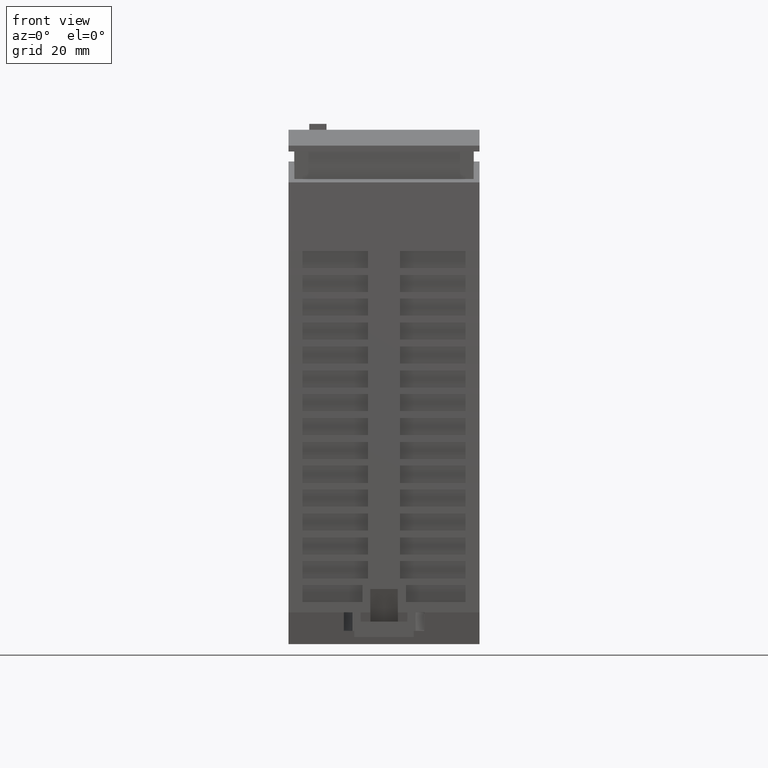
[diagram: clean part render]
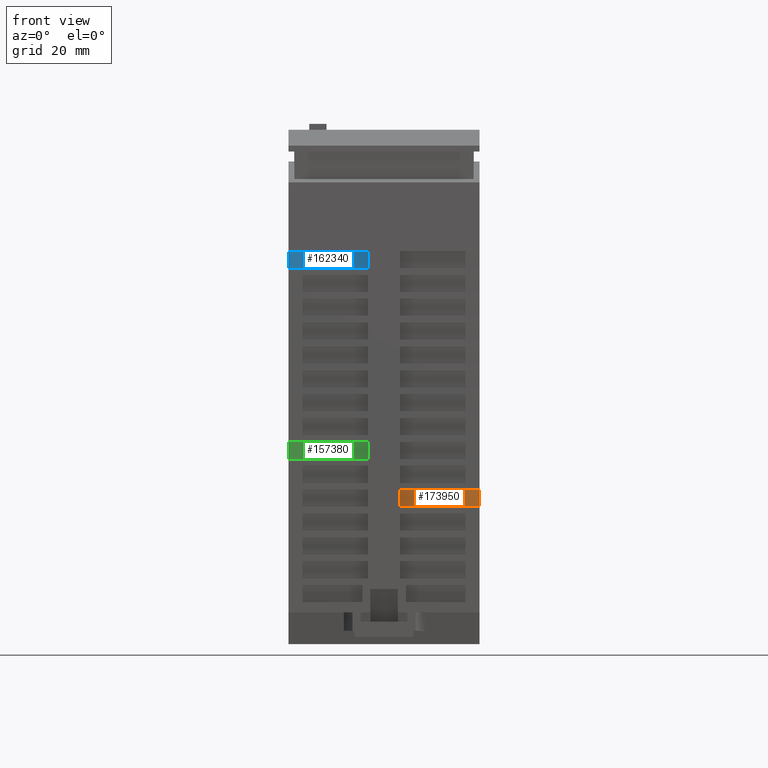
[diagram: same view with three faces highlighted in distinct colors, each labeled with its STEP entity id]
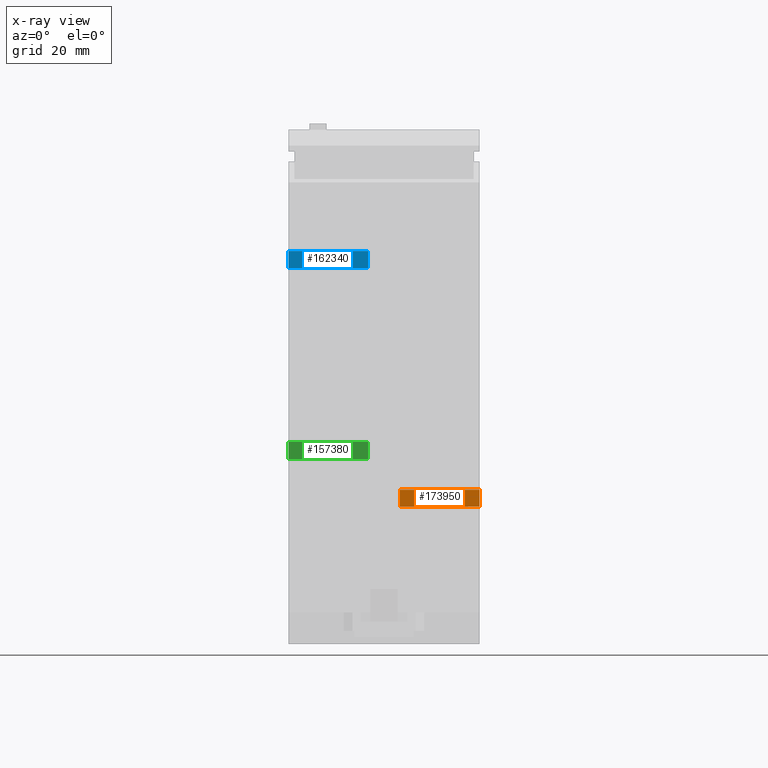
[diagram: x-ray of the same camera — body ghosted, the three highlighted faces saturated]
A machine part, front view with three faces highlighted in distinct colors.
The next image is the same camera in x-ray (body ghosted, the three faces saturated) — at least one of them is partly hidden behind the body in this view.
Their STEP definitions:

[orange] entity #173950 — the highlighted planar face has unit normal (-0, 1, 0.0087).
#137350=CARTESIAN_POINT('',(124.800000391412,-18.3006684360776,
1.20020983604465));
#137360=DIRECTION('',(-0.999961923064172,-0.00872653549837376,
1.10348171245818E-9));
#137370=VECTOR('',#137360,1.);
#137380=LINE('',#137350,#137370);
#138110=CARTESIAN_POINT('',(148.115391423299,-18.0971981010525,
1.20020981031556));
#138120=VERTEX_POINT('',#138110);
#138150=CARTESIAN_POINT('',(144.885981128776,-18.1253807377349,
1.20020981387929));
#138160=VERTEX_POINT('',#138150);
#138170=EDGE_CURVE('',#138120,#138160,#137380,.T.);
#153740=CARTESIAN_POINT('',(100.000000202669,-18.5170947585889,
-34.799790136588));
#153750=DIRECTION('',(-0.00872653549837376,0.999961923064171,
9.62993853412825E-12));
#153760=DIRECTION('',(-0.999961923064172,-0.00872653549837376,
1.10348171245818E-9));
#153770=AXIS2_PLACEMENT_3D('',#153740,#153750,#153760);
#153780=PLANE('',#153770);
#173700=CARTESIAN_POINT('',(148.115391396538,-18.0971981010525,
-23.0497901896844));
#173710=DIRECTION('',(1.10352367625519E-9,8.52434683568721E-24,1.));
#173720=VECTOR('',#173710,1.);
#173730=LINE('',#173700,#173720);
#173740=CARTESIAN_POINT('',(148.115391406746,-18.0971981010525,
-13.7997901896845));
#173750=VERTEX_POINT('',#173740);
#173760=EDGE_CURVE('',#173750,#138120,#173730,.T.);
#173770=ORIENTED_EDGE('',*,*,#173760,.T.);
#173780=CARTESIAN_POINT('',(84.0000002258428,-18.656724643241,
-13.7997901189316));
#173790=DIRECTION('',(0.999961923064172,0.00872653549837376,
-1.10348171245818E-9));
#173800=VECTOR('',#173790,1.);
#173810=LINE('',#173780,#173800);
#173820=CARTESIAN_POINT('',(144.885981112223,-18.1253807377349,
-13.7997901861207));
#173830=VERTEX_POINT('',#173820);
#173840=EDGE_CURVE('',#173830,#173750,#173810,.T.);
#173850=ORIENTED_EDGE('',*,*,#173840,.T.);
#173860=CARTESIAN_POINT('',(144.885981102015,-18.1253807377349,
-23.0497901861207));
#173870=DIRECTION('',(-1.10352327023076E-9,3.54331291260306E-18,-1.));
#173880=VECTOR('',#173870,1.);
#173890=LINE('',#173860,#173880);
#173900=EDGE_CURVE('',#138160,#173830,#173890,.T.);
#173910=ORIENTED_EDGE('',*,*,#173900,.T.);
#173920=ORIENTED_EDGE('',*,*,#138170,.T.);
#173930=EDGE_LOOP('',(#173920,#173910,#173850,#173770));
#173940=FACE_OUTER_BOUND('',#173930,.T.);
#173950=ADVANCED_FACE('',(#173940),#153780,.F.);

[blue] entity #162340 — the highlighted planar face has unit normal (-0, 1, 0.0087).
#5870=CARTESIAN_POINT('',(99.9065620982942,-18.5179101805724,
-34.7997901364849));
#5880=VERTEX_POINT('',#5870);
#5910=CARTESIAN_POINT('',(124.800000351686,-18.3006684360776,
-34.7997901639554));
#5920=DIRECTION('',(0.999961923064172,0.00872653549837376,
-1.10348171245818E-9));
#5930=VECTOR('',#5920,1.);
#5940=LINE('',#5910,#5930);
#5950=CARTESIAN_POINT('',(103.094810374326,-18.4900867593833,
-34.7997901400032));
#5960=VERTEX_POINT('',#5950);
#5970=EDGE_CURVE('',#5880,#5960,#5940,.T.);
#145890=CARTESIAN_POINT('',(103.094810390879,-18.4900867593833,
-19.7997901400032));
#145900=VERTEX_POINT('',#145890);
#145930=CARTESIAN_POINT('',(84.0000002192216,-18.656724643241,
-19.7997901189316));
#145940=DIRECTION('',(-0.999961923064172,-0.00872653549837376,
1.10348171245818E-9));
#145950=VECTOR('',#145940,1.);
#145960=LINE('',#145930,#145950);
#145970=CARTESIAN_POINT('',(99.9065621148471,-18.5179101805724,
-19.7997901364849));
#145980=VERTEX_POINT('',#145970);
#145990=EDGE_CURVE('',#145900,#145980,#145960,.T.);
#153740=CARTESIAN_POINT('',(100.000000202669,-18.5170947585889,
-34.799790136588));
#153750=DIRECTION('',(-0.00872653549837376,0.999961923064171,
9.62993853412825E-12));
#153760=DIRECTION('',(-0.999961923064172,-0.00872653549837376,
1.10348171245818E-9));
#153770=AXIS2_PLACEMENT_3D('',#153740,#153750,#153760);
#153780=PLANE('',#153770);
#162050=CARTESIAN_POINT('',(99.9065621112606,-18.5179101805724,
-23.0497901364849));
#162060=DIRECTION('',(-1.10352367625519E-9,-8.52434683568721E-24,-1.));
#162070=VECTOR('',#162060,1.);
#162080=LINE('',#162050,#162070);
#162090=EDGE_CURVE('',#145980,#5880,#162080,.T.);
#162230=ORIENTED_EDGE('',*,*,#162090,.T.);
#162240=ORIENTED_EDGE('',*,*,#145990,.T.);
#162250=CARTESIAN_POINT('',(103.094810387293,-18.4900867593834,
-23.0497901400032));
#162260=DIRECTION('',(1.1035238792674E-9,1.77166924282179E-18,1.));
#162270=VECTOR('',#162260,1.);
#162280=LINE('',#162250,#162270);
#162290=EDGE_CURVE('',#5960,#145900,#162280,.T.);
#162300=ORIENTED_EDGE('',*,*,#162290,.T.);
#162310=ORIENTED_EDGE('',*,*,#5970,.T.);
#162320=EDGE_LOOP('',(#162310,#162300,#162240,#162230));
#162330=FACE_OUTER_BOUND('',#162320,.T.);
#162340=ADVANCED_FACE('',(#162330),#153780,.F.);

[green] entity #157380 — the highlighted planar face has unit normal (-0, 1, 0.0087).
#5910=CARTESIAN_POINT('',(124.800000351686,-18.3006684360776,
-34.7997901639554));
#5920=DIRECTION('',(0.999961923064172,0.00872653549837376,
-1.10348171245818E-9));
#5930=VECTOR('',#5920,1.);
#5940=LINE('',#5910,#5930);
#7830=CARTESIAN_POINT('',(135.890097290898,-18.2038866263024,
-34.7997901761935));
#7840=VERTEX_POINT('',#7830);
#7870=CARTESIAN_POINT('',(139.111275181723,-18.1757758327187,
-34.7997901797482));
#7880=VERTEX_POINT('',#7870);
#7890=EDGE_CURVE('',#7840,#7880,#5940,.T.);
#148930=CARTESIAN_POINT('',(139.111275198275,-18.1757758327187,
-19.7997901797482));
#148940=VERTEX_POINT('',#148930);
#148970=CARTESIAN_POINT('',(84.0000002192216,-18.656724643241,
-19.7997901189316));
#148980=DIRECTION('',(-0.999961923064172,-0.00872653549837376,
1.10348171245818E-9));
#148990=VECTOR('',#148980,1.);
#149000=LINE('',#148970,#148990);
#149010=CARTESIAN_POINT('',(135.890097307451,-18.2038866263024,
-19.7997901761936));
#149020=VERTEX_POINT('',#149010);
#149030=EDGE_CURVE('',#148940,#149020,#149000,.T.);
#153740=CARTESIAN_POINT('',(100.000000202669,-18.5170947585889,
-34.799790136588));
#153750=DIRECTION('',(-0.00872653549837376,0.999961923064171,
9.62993853412825E-12));
#153760=DIRECTION('',(-0.999961923064172,-0.00872653549837376,
1.10348171245818E-9));
#153770=AXIS2_PLACEMENT_3D('',#153740,#153750,#153760);
#153780=PLANE('',#153770);
#157090=CARTESIAN_POINT('',(135.890097303864,-18.2038866263024,
-23.0497901761935));
#157100=DIRECTION('',(-1.10352408227961E-9,-3.54332996129674E-18,-1.));
#157110=VECTOR('',#157100,1.);
#157120=LINE('',#157090,#157110);
#157130=EDGE_CURVE('',#149020,#7840,#157120,.T.);
#157270=ORIENTED_EDGE('',*,*,#157130,.T.);
#157280=ORIENTED_EDGE('',*,*,#149030,.T.);
#157290=CARTESIAN_POINT('',(139.111275194689,-18.1757758327187,
-23.0497901797482));
#157300=DIRECTION('',(1.10352367625519E-9,8.52434683568721E-24,1.));
#157310=VECTOR('',#157300,1.);
#157320=LINE('',#157290,#157310);
#157330=EDGE_CURVE('',#7880,#148940,#157320,.T.);
#157340=ORIENTED_EDGE('',*,*,#157330,.T.);
#157350=ORIENTED_EDGE('',*,*,#7890,.T.);
#157360=EDGE_LOOP('',(#157350,#157340,#157280,#157270));
#157370=FACE_OUTER_BOUND('',#157360,.T.);
#157380=ADVANCED_FACE('',(#157370),#153780,.F.);